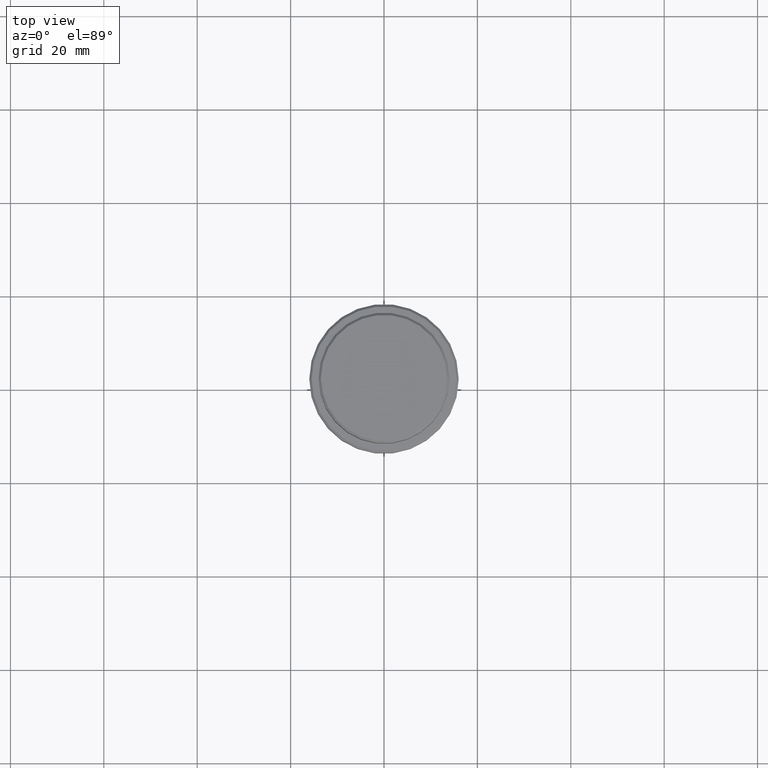
[diagram: clean part render]
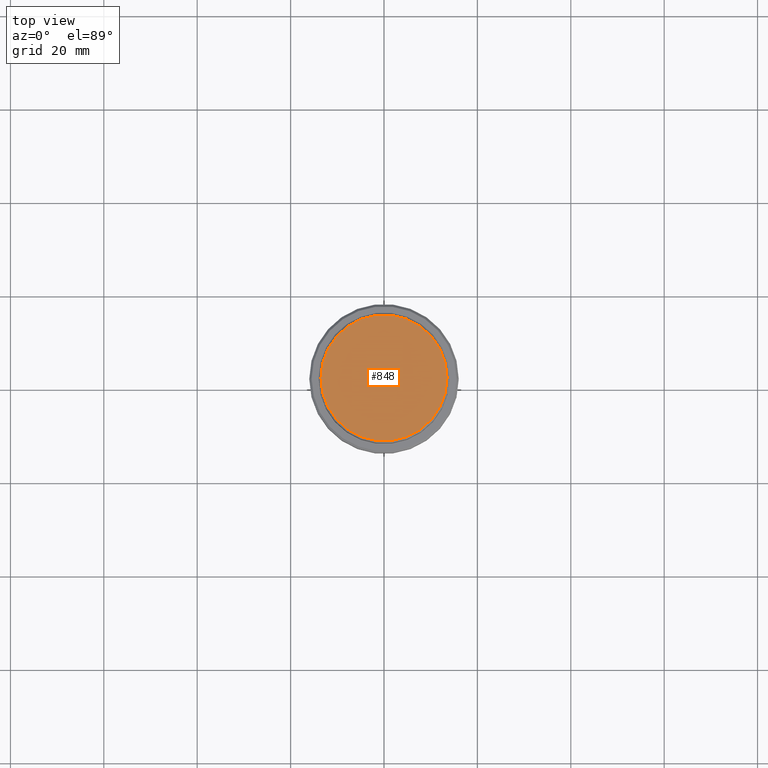
[diagram: same view with one face highlighted and labeled with its STEP entity id]
A machine part, top view. The second image highlights one B-rep face of the part: STEP entity #848.
In plain terms, the highlighted planar face has unit normal (0, -0, 1).
Its self-contained STEP definition (entity closure, byte-faithful):
#11 = AXIS2_PLACEMENT_3D ( 'NONE', #995, #1214, #117 ) ;
#66 = DIRECTION ( 'NONE',  ( 1.000000000000000000, 0.000000000000000000, 0.000000000000000000 ) ) ;
#117 = DIRECTION ( 'NONE',  ( 1.000000000000000000, 0.000000000000000000, 0.000000000000000000 ) ) ;
#314 = VERTEX_POINT ( 'NONE', #1178 ) ;
#332 = AXIS2_PLACEMENT_3D ( 'NONE', #725, #1028, #66 ) ;
#352 = FACE_OUTER_BOUND ( 'NONE', #1272, .T. ) ;
#382 = DIRECTION ( 'NONE',  ( -0.000000000000000000, -0.000000000000000000, 1.000000000000000000 ) ) ;
#461 = CARTESIAN_POINT ( 'NONE',  ( -13.49999999999998401, 0.000000000000000000, 0.000000000000000000 ) ) ;
#511 = EDGE_CURVE ( 'NONE', #314, #1264, #894, .T. ) ;
#609 = CIRCLE ( 'NONE', #985, 13.49999999999998401 ) ;
#658 = ORIENTED_EDGE ( 'NONE', *, *, #949, .T. ) ;
#725 = CARTESIAN_POINT ( 'NONE',  ( 0.000000000000000000, 0.000000000000000000, 0.000000000000000000 ) ) ;
#757 = PLANE ( 'NONE',  #11 ) ;
#783 = CARTESIAN_POINT ( 'NONE',  ( 0.000000000000000000, 0.000000000000000000, 0.000000000000000000 ) ) ;
#812 = DIRECTION ( 'NONE',  ( 1.000000000000000000, 0.000000000000000000, 0.000000000000000000 ) ) ;
#848 = ADVANCED_FACE ( 'NONE', ( #352 ), #757, .T. ) ;
#894 = CIRCLE ( 'NONE', #332, 13.49999999999998401 ) ;
#949 = EDGE_CURVE ( 'NONE', #1264, #314, #609, .T. ) ;
#985 = AXIS2_PLACEMENT_3D ( 'NONE', #783, #382, #812 ) ;
#995 = CARTESIAN_POINT ( 'NONE',  ( 0.000000000000000000, 0.000000000000000000, 0.000000000000000000 ) ) ;
#1028 = DIRECTION ( 'NONE',  ( -0.000000000000000000, -0.000000000000000000, 1.000000000000000000 ) ) ;
#1178 = CARTESIAN_POINT ( 'NONE',  ( 13.49999999999998401, 1.683889348827609273E-15, 0.000000000000000000 ) ) ;
#1179 = ORIENTED_EDGE ( 'NONE', *, *, #511, .T. ) ;
#1214 = DIRECTION ( 'NONE',  ( 0.000000000000000000, -0.000000000000000000, 1.000000000000000000 ) ) ;
#1264 = VERTEX_POINT ( 'NONE', #461 ) ;
#1272 = EDGE_LOOP ( 'NONE', ( #658, #1179 ) ) ;